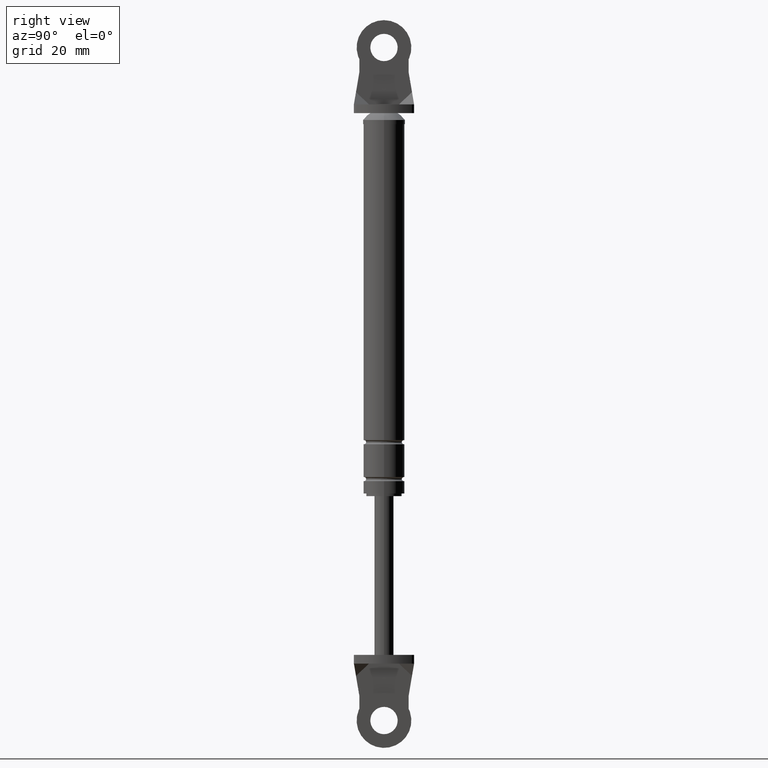
[diagram: clean part render]
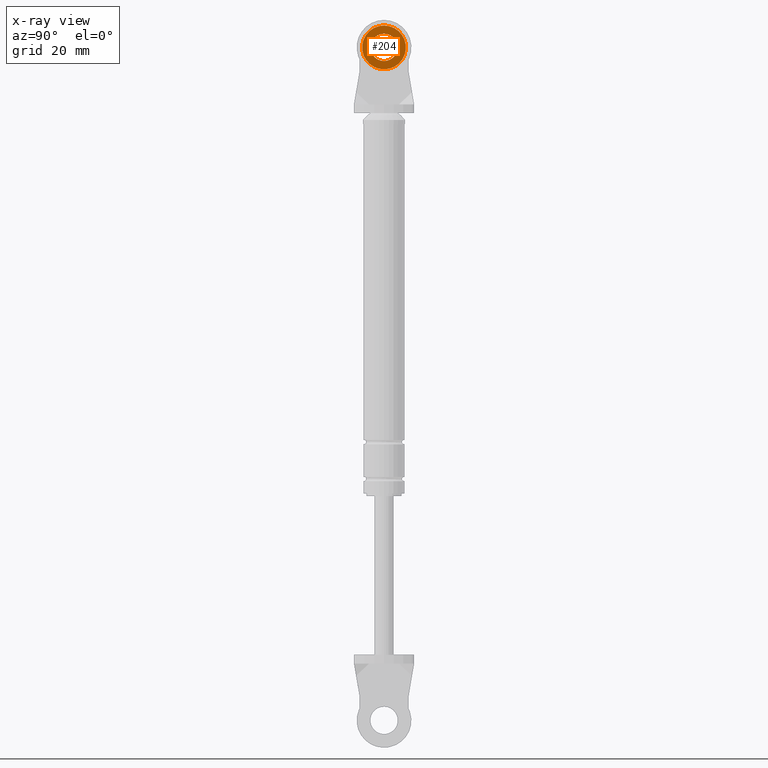
[diagram: x-ray — body ghosted, one internal face saturated and labeled with its STEP entity id]
A machine part, right view, then the same camera in x-ray: the body is ghosted and one INTERNAL B-rep face — a face not visible from any outside direction — is saturated and labeled: STEP entity #204.
In plain terms, the highlighted planar face has unit normal (-1, 0, 0).
Its self-contained STEP definition (entity closure, byte-faithful):
#204=ADVANCED_FACE('',(#285,#286),#284,.F.);
#284=PLANE('',#1101);
#285=FACE_OUTER_BOUND('',#1102,.T.);
#286=FACE_BOUND('',#1103,.T.);
#1098=CARTESIAN_POINT('',(6.24999840000E+001,-1.66276877527E+001,2.63400000000E+002));
#1099=DIRECTION('',(-1.00000000000E+000,0.00000000000E+000,0.00000000000E+000));
#1100=DIRECTION('',(0.00000000000E+000,1.00000000000E+000,0.00000000000E+000));
#1101=AXIS2_PLACEMENT_3D('',#1098,#1099,#1100);
#1102=EDGE_LOOP('',(#1596,#1597,#1598));
#1103=EDGE_LOOP('',(#1599,#1600,#1601));
#1596=ORIENTED_EDGE('',*,*,#1996,.T.);
#1597=ORIENTED_EDGE('',*,*,#1997,.T.);
#1598=ORIENTED_EDGE('',*,*,#1998,.T.);
#1599=ORIENTED_EDGE('',*,*,#1999,.F.);
#1600=ORIENTED_EDGE('',*,*,#2000,.F.);
#1601=ORIENTED_EDGE('',*,*,#2001,.F.);
#1996=EDGE_CURVE('',#2196,#2197,#2198,.T.);
#1997=EDGE_CURVE('',#2197,#2204,#2205,.T.);
#1998=EDGE_CURVE('',#2204,#2196,#2211,.T.);
#1999=EDGE_CURVE('',#2217,#2218,#2219,.T.);
#2000=EDGE_CURVE('',#2225,#2217,#2226,.T.);
#2001=EDGE_CURVE('',#2218,#2225,#2232,.T.);
#2196=VERTEX_POINT('',#3530);
#2197=VERTEX_POINT('',#3531);
#2198=CIRCLE('',#3535,8.00000000000E+000);
#2204=VERTEX_POINT('',#3536);
#2205=CIRCLE('',#3540,8.00000000000E+000);
#2211=CIRCLE('',#3544,8.00000000000E+000);
#2217=VERTEX_POINT('',#3545);
#2218=VERTEX_POINT('',#3546);
#2219=CIRCLE('',#3550,5.00000000000E+000);
#2225=VERTEX_POINT('',#3551);
#2226=CIRCLE('',#3555,5.00000000000E+000);
#2232=CIRCLE('',#3559,5.00000000000E+000);
#3530=CARTESIAN_POINT('',(6.24999840000E+001,-4.50750547998E-014,2.61000000000E+002));
#3531=CARTESIAN_POINT('',(6.24999840000E+001,-7.94391288838E+000,2.53945646880E+002));
#3532=CARTESIAN_POINT('',(6.24999840000E+001,-1.04805053525E-013,2.53000000000E+002));
#3533=DIRECTION('',(1.00000000000E+000,2.66867514007E-015,2.24512815344E-014));
#3534=DIRECTION('',(-2.24512815344E-014,7.11930514541E-015,1.00000000000E+000));
#3535=AXIS2_PLACEMENT_3D('',#3532,#3533,#3534);
#3536=CARTESIAN_POINT('',(6.24999840000E+001,7.94407621098E+000,2.52055726123E+002));
#3537=CARTESIAN_POINT('',(6.24999840000E+001,-1.04805053525E-013,2.53000000000E+002));
#3538=DIRECTION('',(1.00000000000E+000,2.66867514007E-015,2.24512815344E-014));
#3539=DIRECTION('',(-2.24512815344E-014,7.11930514541E-015,1.00000000000E+000));
#3540=AXIS2_PLACEMENT_3D('',#3537,#3538,#3539);
#3541=CARTESIAN_POINT('',(6.24999840000E+001,-1.04805053525E-013,2.53000000000E+002));
#3542=DIRECTION('',(1.00000000000E+000,2.66867514007E-015,2.24512815344E-014));
#3543=DIRECTION('',(-2.24512815344E-014,7.11930514541E-015,1.00000000000E+000));
#3544=AXIS2_PLACEMENT_3D('',#3541,#3542,#3543);
#3545=CARTESIAN_POINT('',(6.24999840000E+001,4.96504763407E+000,2.52409828846E+002));
#3546=CARTESIAN_POINT('',(6.24999840000E+001,-6.20614670765E-014,2.58000000000E+002));
#3547=CARTESIAN_POINT('',(6.24999840000E+001,-6.75015598972E-014,2.53000000000E+002));
#3548=DIRECTION('',(1.00000000000E+000,4.48281181067E-015,1.36342128856E-014));
#3549=DIRECTION('',(-1.36342128856E-014,7.21644966006E-016,1.00000000000E+000));
#3550=AXIS2_PLACEMENT_3D('',#3547,#3548,#3549);
#3551=CARTESIAN_POINT('',(6.24999840000E+001,-4.96494555530E+000,2.53591029300E+002));
#3552=CARTESIAN_POINT('',(6.24999840000E+001,-6.75015598972E-014,2.53000000000E+002));
#3553=DIRECTION('',(1.00000000000E+000,4.48281181067E-015,1.36342128856E-014));
#3554=DIRECTION('',(-1.36342128856E-014,7.21644966006E-016,1.00000000000E+000));
#3555=AXIS2_PLACEMENT_3D('',#3552,#3553,#3554);
#3556=CARTESIAN_POINT('',(6.24999840000E+001,-6.75015598972E-014,2.53000000000E+002));
#3557=DIRECTION('',(1.00000000000E+000,4.48281181067E-015,1.36342128856E-014));
#3558=DIRECTION('',(-1.36342128856E-014,7.21644966006E-016,1.00000000000E+000));
#3559=AXIS2_PLACEMENT_3D('',#3556,#3557,#3558);